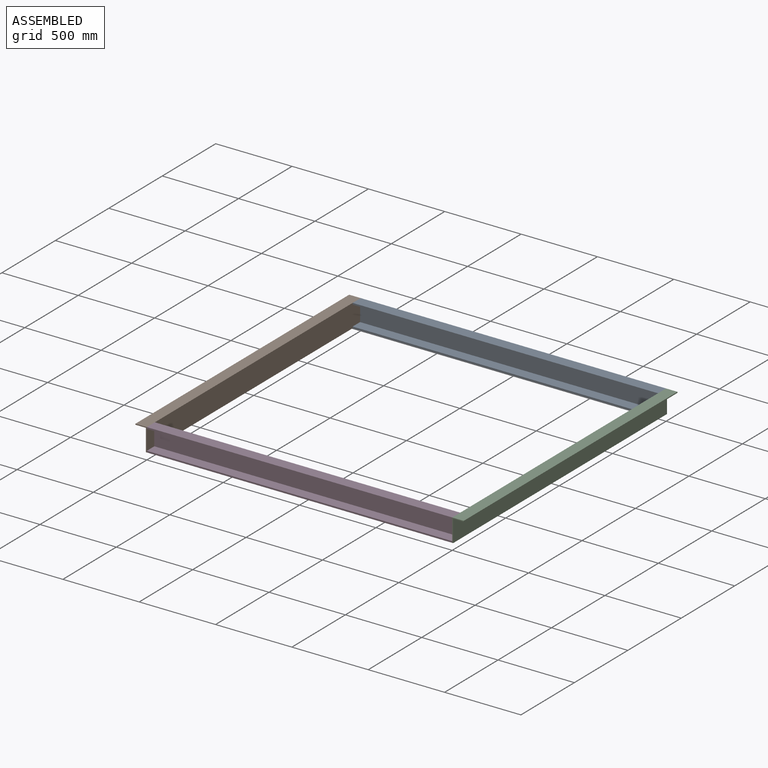
[diagram: assembled view]
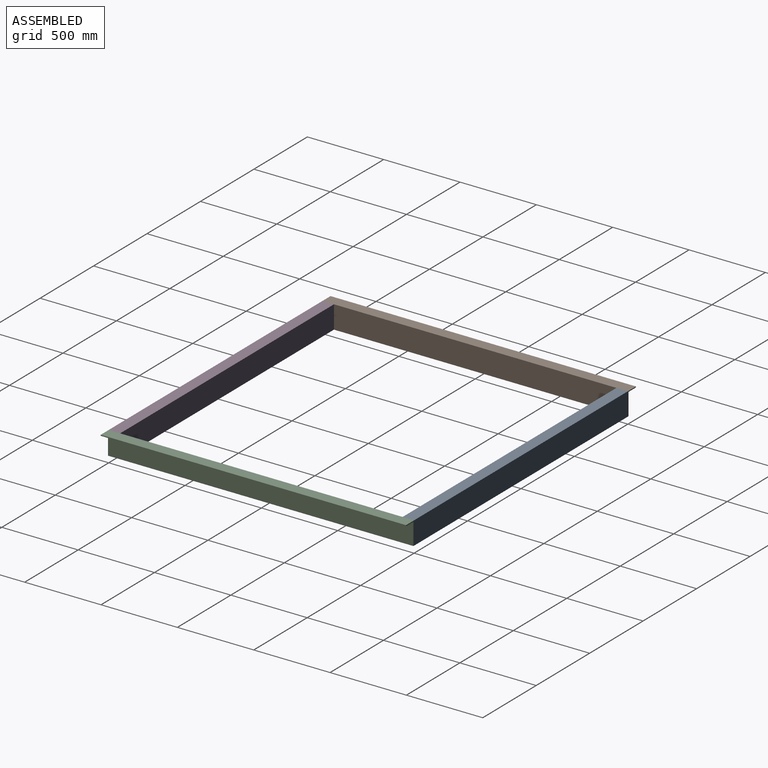
[diagram: assembled view, second angle]
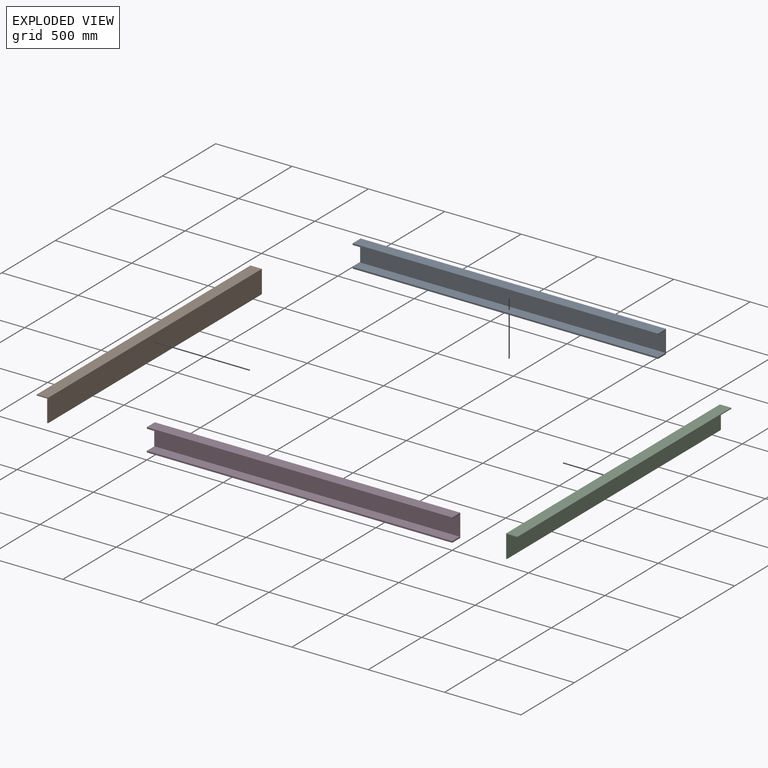
[diagram: exploded view]
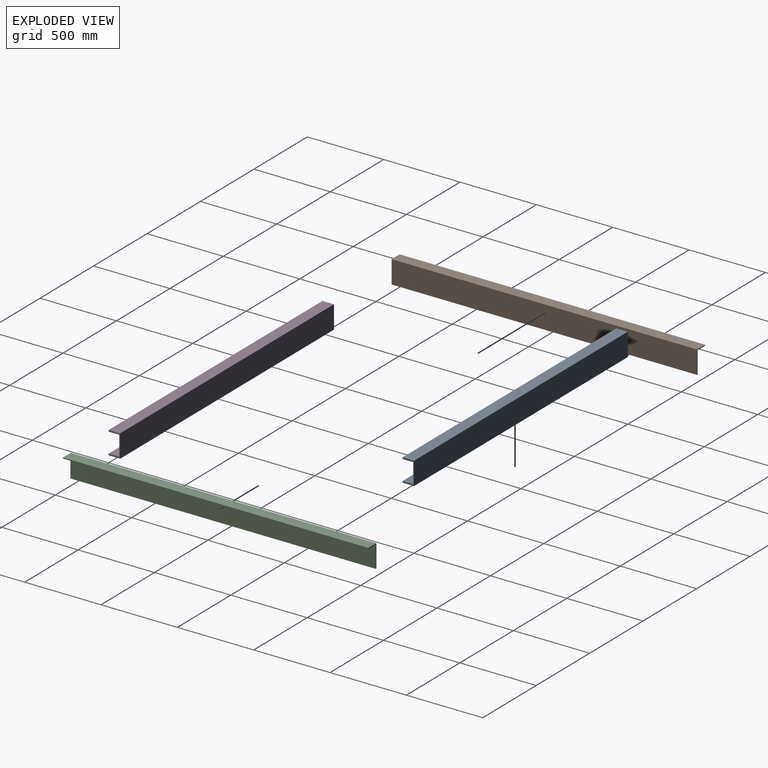
[diagram: exploded view, second angle]
ASSEMBLY  parts=4 mates=2
PART A: 10 faces, bbox 2000x75x150 mm
  f0: plane 2000x75mm, normal (0,0,1), area 150000mm2, adj f1,f7,f8,f9
  f1: plane 2000x10mm, normal (0,-1,0), area 20000mm2, adj f0,f2,f8,f9
  f2: plane 2000x69.5mm, normal (0,0,-1), area 139000mm2, adj f1,f3,f8,f9
  f3: plane 2000x130mm, normal (0,-1,0), area 260000mm2, adj f2,f4,f8,f9
  f4: plane 2000x69.5mm, normal (0,0,1), area 139000mm2, adj f3,f5,f8,f9
  f5: plane 2000x10mm, normal (0,-1,0), area 20000mm2, adj f4,f6,f8,f9
  f6: plane 2000x75mm, normal (0,0,-1), area 150000mm2, adj f5,f7,f8,f9
  f7: plane 2000x150mm, normal (0,1,0), area 300000mm2, adj f0,f6,f8,f9
  f8: plane 150x75mm, normal (-1,0,0), area 2215mm2, adj f0,f1,f2,f3,f4,f5,f6,f7
  f9: plane 150x75mm, normal (1,0,0), area 2215mm2, adj f0,f1,f2,f3,f4,f5,f6,f7
PART B: 8 faces, bbox 75x2000x150 mm
  f0: plane 2000x75mm, normal (0,0,1), area 150000mm2, adj f1,f5,f6,f7
  f1: plane 2000x150mm, normal (-1,0,0), area 300000mm2, adj f0,f2,f6,f7
  f2: plane 2000x6mm, normal (0,0,-1), area 12000mm2, adj f1,f3,f6,f7
  f3: plane 2000x144mm, normal (1,0,0), area 288000mm2, adj f2,f4,f6,f7
  f4: plane 2000x69mm, normal (0,0,-1), area 138000mm2, adj f3,f5,f6,f7
  f5: plane 2000x6mm, normal (1,0,0), area 12000mm2, adj f0,f4,f6,f7
  f6: plane 150x75mm, normal (0,1,0), area 1314mm2, adj f0,f1,f2,f3,f4,f5
  f7: plane 150x75mm, normal (0,-1,0), area 1314mm2, adj f0,f1,f2,f3,f4,f5
PART C: same geometry as B
PART D: same geometry as A
PLACE A t=(0,1925,0)mm
PLACE B rot(axis=(0,0,1),180deg) t=(-2000,2000,0)mm
PLACE C at identity
PLACE D at identity
MATE fastened B.f0 <-> A.f0  axis (0,0,1) through (-2000,2000,0)mm
MATE fastened A.f0 <-> C.f0  axis (0,0,1) through (0,2000,0)mm
